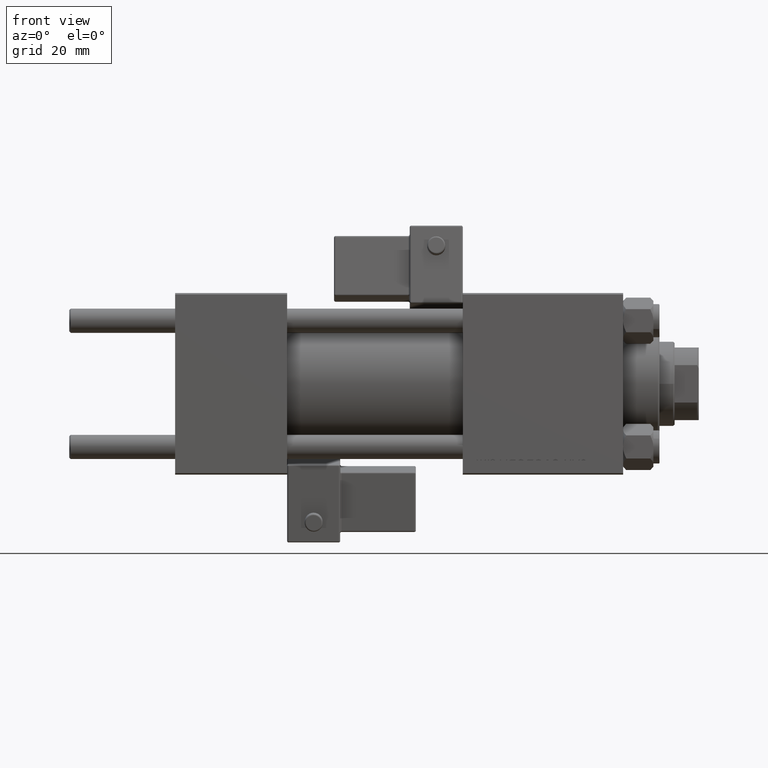
[diagram: clean part render]
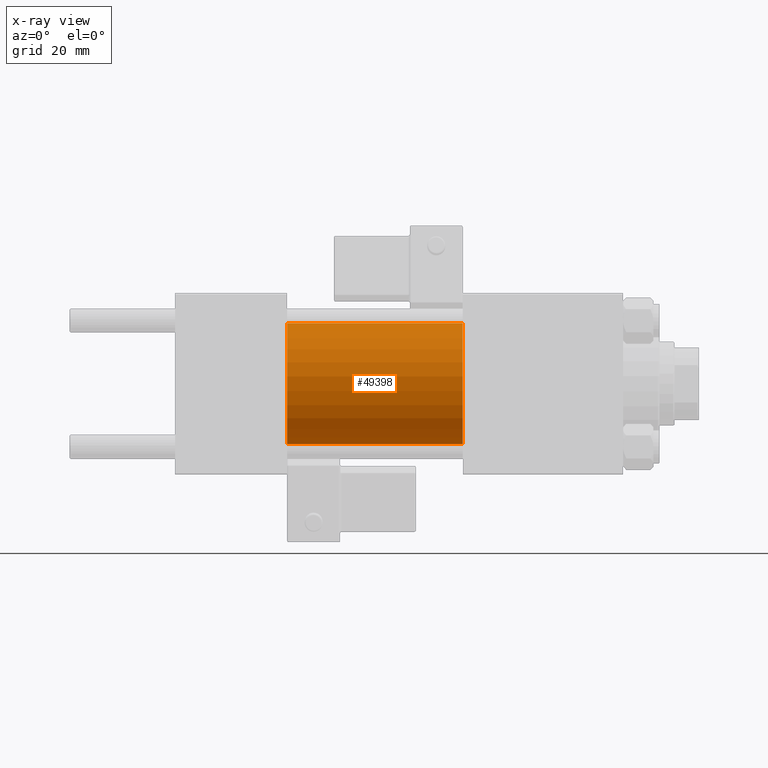
[diagram: x-ray — body ghosted, one internal face saturated and labeled with its STEP entity id]
A machine part, front view, then the same camera in x-ray: the body is ghosted and one INTERNAL B-rep face — a face not visible from any outside direction — is saturated and labeled: STEP entity #49398.
In plain terms, the highlighted cylindrical surface (partial cylindrical patch) has radius 20 mm, axis along (-1, -0, -0).
Its self-contained STEP definition (entity closure, byte-faithful):
#380 = AXIS2_PLACEMENT_3D ( 'NONE', #28093, #43917, #7306 ) ;
#3247 = EDGE_CURVE ( 'NONE', #5930, #19276, #45580, .T. ) ;
#5930 = VERTEX_POINT ( 'NONE', #29032 ) ;
#7306 = DIRECTION ( 'NONE',  ( 0.000000000000000000, 0.000000000000000000, -1.000000000000000000 ) ) ;
#7384 = LINE ( 'NONE', #40039, #33305 ) ;
#8350 = VERTEX_POINT ( 'NONE', #35266 ) ;
#8445 = DIRECTION ( 'NONE',  ( 0.000000000000000000, 0.000000000000000000, 1.000000000000000000 ) ) ;
#8447 = AXIS2_PLACEMENT_3D ( 'NONE', #47635, #27613, #15520 ) ;
#10991 = EDGE_CURVE ( 'NONE', #5930, #25324, #26926, .T. ) ;
#10995 = CYLINDRICAL_SURFACE ( 'NONE', #32521, 20.00000000000000000 ) ;
#14662 = CIRCLE ( 'NONE', #380, 20.00000000000000000 ) ;
#15520 = DIRECTION ( 'NONE',  ( 0.000000000000000000, 0.000000000000000000, -1.000000000000000000 ) ) ;
#19276 = VERTEX_POINT ( 'NONE', #51494 ) ;
#20826 = DIRECTION ( 'NONE',  ( -1.000000000000000000, -0.000000000000000000, -0.000000000000000000 ) ) ;
#23164 = CARTESIAN_POINT ( 'NONE',  ( 95.00000000000000000, 2.449293598294706119E-15, -20.00000000000000000 ) ) ;
#23360 = CARTESIAN_POINT ( 'NONE',  ( 95.00000000000000000, 0.000000000000000000, 0.000000000000000000 ) ) ;
#24875 = ORIENTED_EDGE ( 'NONE', *, *, #39055, .F. ) ;
#25324 = VERTEX_POINT ( 'NONE', #23164 ) ;
#26926 = CIRCLE ( 'NONE', #8447, 20.00000000000000000 ) ;
#27613 = DIRECTION ( 'NONE',  ( 1.000000000000000000, 0.000000000000000000, 0.000000000000000000 ) ) ;
#28093 = CARTESIAN_POINT ( 'NONE',  ( 37.00000000000000000, 0.000000000000000000, 0.000000000000000000 ) ) ;
#28311 = VECTOR ( 'NONE', #20826, 1000.000000000000000 ) ;
#28710 = DIRECTION ( 'NONE',  ( -1.000000000000000000, -0.000000000000000000, -0.000000000000000000 ) ) ;
#29032 = CARTESIAN_POINT ( 'NONE',  ( 95.00000000000000000, 0.000000000000000000, 20.00000000000000000 ) ) ;
#32521 = AXIS2_PLACEMENT_3D ( 'NONE', #23360, #28710, #8445 ) ;
#33305 = VECTOR ( 'NONE', #48190, 1000.000000000000000 ) ;
#34361 = ORIENTED_EDGE ( 'NONE', *, *, #10991, .T. ) ;
#35266 = CARTESIAN_POINT ( 'NONE',  ( 37.00000000000000000, 2.449293598294706119E-15, -20.00000000000000000 ) ) ;
#37420 = CARTESIAN_POINT ( 'NONE',  ( 95.00000000000000000, 0.000000000000000000, 20.00000000000000000 ) ) ;
#39055 = EDGE_CURVE ( 'NONE', #19276, #8350, #14662, .T. ) ;
#40039 = CARTESIAN_POINT ( 'NONE',  ( 95.00000000000000000, 2.449293598294706119E-15, -20.00000000000000000 ) ) ;
#42515 = EDGE_LOOP ( 'NONE', ( #34361, #48572, #24875, #48307 ) ) ;
#43508 = EDGE_CURVE ( 'NONE', #25324, #8350, #7384, .T. ) ;
#43917 = DIRECTION ( 'NONE',  ( 1.000000000000000000, 0.000000000000000000, 0.000000000000000000 ) ) ;
#45580 = LINE ( 'NONE', #37420, #28311 ) ;
#47315 = FACE_OUTER_BOUND ( 'NONE', #42515, .T. ) ;
#47635 = CARTESIAN_POINT ( 'NONE',  ( 95.00000000000000000, 0.000000000000000000, 0.000000000000000000 ) ) ;
#48190 = DIRECTION ( 'NONE',  ( -1.000000000000000000, -0.000000000000000000, -0.000000000000000000 ) ) ;
#48307 = ORIENTED_EDGE ( 'NONE', *, *, #3247, .F. ) ;
#48572 = ORIENTED_EDGE ( 'NONE', *, *, #43508, .T. ) ;
#49398 = ADVANCED_FACE ( 'NONE', ( #47315 ), #10995, .F. ) ;
#51494 = CARTESIAN_POINT ( 'NONE',  ( 37.00000000000000000, 0.000000000000000000, 20.00000000000000000 ) ) ;